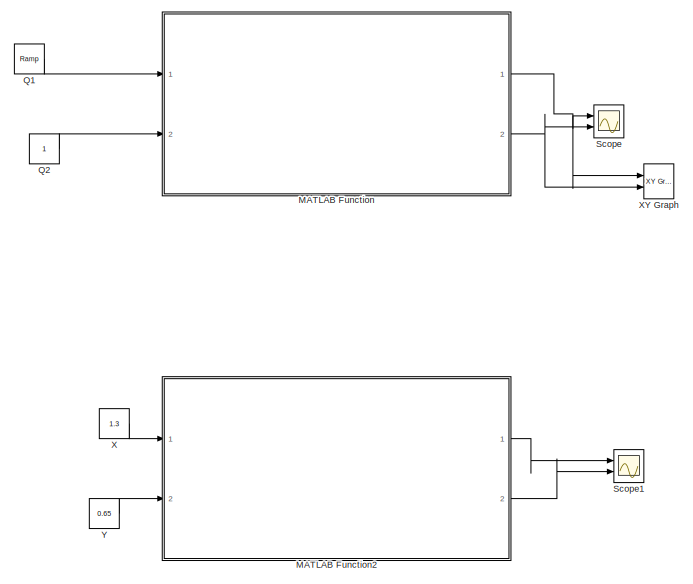
[diagram: root canvas - part 1/3, top left region]
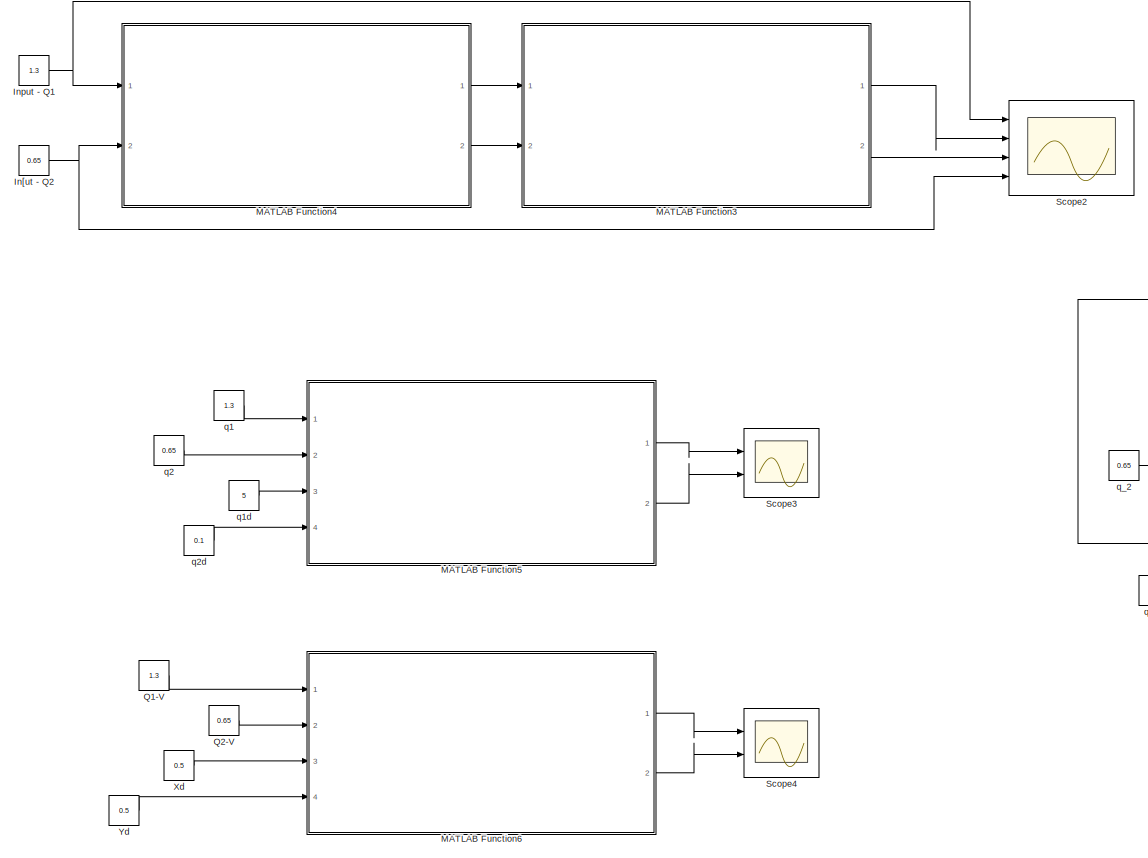
[diagram: root canvas - part 2/3, center side, full height]
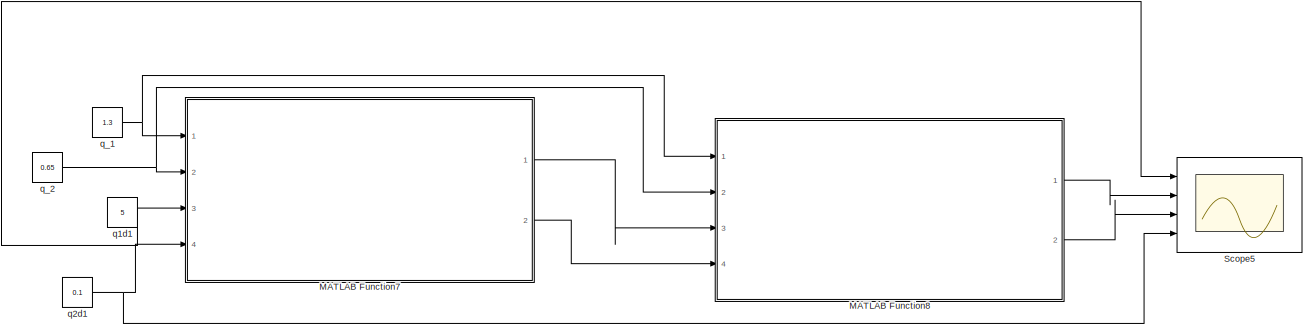
[diagram: root canvas - part 3/3, middle right region]
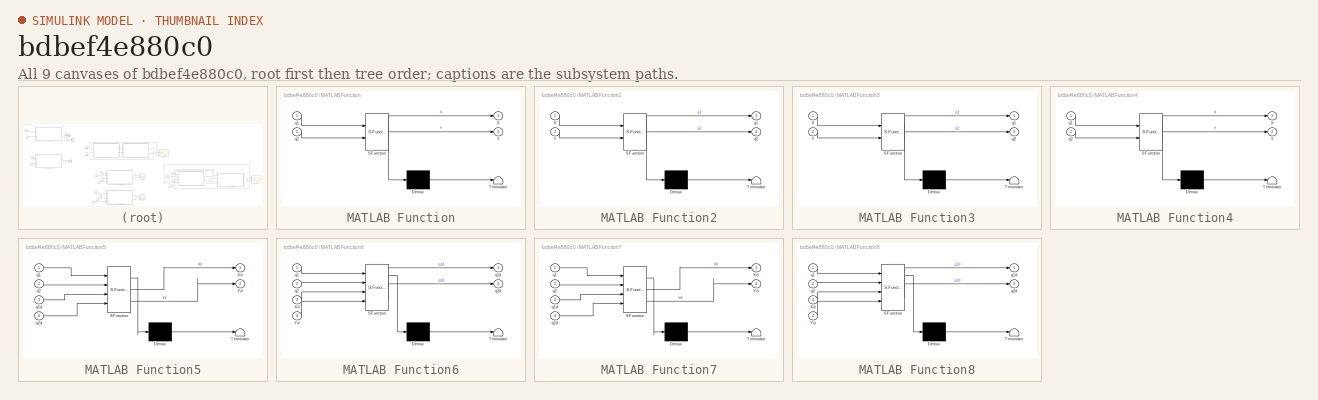
[diagram: thumbnail index - all 9 canvases of the model, root first then tree order]
MODEL slx_bdbef4e880c0
KIND model
CONFIG AbsTol = auto
CONFIG EnableMultiTasking = off
CONFIG FixedStep = auto
CONFIG MaxStep = auto
CONFIG MinStep = auto
CONFIG RelTol = 1e-3
CONFIG SampleTimeConstraint = Unconstrained
CONFIG SolverName = VariableStepAuto
CONFIG StartTime = 0.0
CONFIG StopTime = 3
BLOCK [Constant] In[ut - Q2
  Value = 0.65
BLOCK [Constant] Input - Q1
  Value = 1.3
BLOCK [SubSystem] MATLAB Function
  ErrorFcn = Stateflow.Translate.translate
  PermitHierarchicalResolution = ExplicitOnly
  Ports = [2, 2]
  RequestExecContextInheritance = off
  SFBlockType = MATLAB Function
  TreatAsAtomicUnit = on
BLOCK [Demux] MATLAB Function/ Demux 
  Outputs = 1
  Ports = [1, 1]
BLOCK [S-Function] MATLAB Function/ SFunction 
  EnableBusSupport = on
  FunctionName = sf_sfun
  PortCounts = [2 3]
  Ports = [2, 3]
  SFcnIsStateOwnerBlock = off
  SFunctionDeploymentMode = off
  Tag = Stateflow S-Function 2
BLOCK [Terminator] MATLAB Function/ Terminator 
BLOCK [Outport] MATLAB Function/X
BLOCK [Outport] MATLAB Function/Y
  Port = 2
BLOCK [Inport] MATLAB Function/q1
BLOCK [Inport] MATLAB Function/q2
  Port = 2
BLOCK [SubSystem] MATLAB Function2
  ErrorFcn = Stateflow.Translate.translate
  PermitHierarchicalResolution = ExplicitOnly
  Ports = [2, 2]
  RequestExecContextInheritance = off
  SFBlockType = MATLAB Function
  TreatAsAtomicUnit = on
BLOCK [Demux] MATLAB Function2/ Demux 
  Outputs = 1
  Ports = [1, 1]
BLOCK [S-Function] MATLAB Function2/ SFunction 
  EnableBusSupport = on
  FunctionName = sf_sfun
  PortCounts = [2 3]
  Ports = [2, 3]
  SFcnIsStateOwnerBlock = off
  SFunctionDeploymentMode = off
  Tag = Stateflow S-Function 3
BLOCK [Terminator] MATLAB Function2/ Terminator 
BLOCK [Inport] MATLAB Function2/X
BLOCK [Inport] MATLAB Function2/Y
  Port = 2
BLOCK [Outport] MATLAB Function2/q1
BLOCK [Outport] MATLAB Function2/q2
  Port = 2
BLOCK [SubSystem] MATLAB Function3
  ErrorFcn = Stateflow.Translate.translate
  PermitHierarchicalResolution = ExplicitOnly
  Ports = [2, 2]
  RequestExecContextInheritance = off
  SFBlockType = MATLAB Function
  TreatAsAtomicUnit = on
BLOCK [Demux] MATLAB Function3/ Demux 
  Outputs = 1
  Ports = [1, 1]
BLOCK [S-Function] MATLAB Function3/ SFunction 
  EnableBusSupport = on
  FunctionName = sf_sfun
  PortCounts = [2 3]
  Ports = [2, 3]
  SFcnIsStateOwnerBlock = off
  SFunctionDeploymentMode = off
  Tag = Stateflow S-Function 4
BLOCK [Terminator] MATLAB Function3/ Terminator 
BLOCK [Inport] MATLAB Function3/X
BLOCK [Inport] MATLAB Function3/Y
  Port = 2
BLOCK [Outport] MATLAB Function3/q1
BLOCK [Outport] MATLAB Function3/q2
  Port = 2
BLOCK [SubSystem] MATLAB Function4
  ErrorFcn = Stateflow.Translate.translate
  PermitHierarchicalResolution = ExplicitOnly
  Ports = [2, 2]
  RequestExecContextInheritance = off
  SFBlockType = MATLAB Function
  TreatAsAtomicUnit = on
BLOCK [Demux] MATLAB Function4/ Demux 
  Outputs = 1
  Ports = [1, 1]
BLOCK [S-Function] MATLAB Function4/ SFunction 
  EnableBusSupport = on
  FunctionName = sf_sfun
  PortCounts = [2 3]
  Ports = [2, 3]
  SFcnIsStateOwnerBlock = off
  SFunctionDeploymentMode = off
  Tag = Stateflow S-Function 5
BLOCK [Terminator] MATLAB Function4/ Terminator 
BLOCK [Outport] MATLAB Function4/X
BLOCK [Outport] MATLAB Function4/Y
  Port = 2
BLOCK [Inport] MATLAB Function4/q1
BLOCK [Inport] MATLAB Function4/q2
  Port = 2
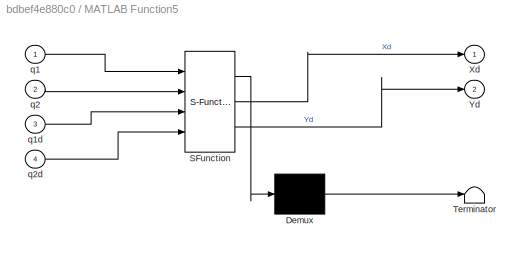
BLOCK [SubSystem] MATLAB Function5
  ErrorFcn = Stateflow.Translate.translate
  PermitHierarchicalResolution = ExplicitOnly
  Ports = [4, 2]
  RequestExecContextInheritance = off
  SFBlockType = MATLAB Function
  TreatAsAtomicUnit = on
BLOCK [Demux] MATLAB Function5/ Demux 
  Outputs = 1
  Ports = [1, 1]
BLOCK [S-Function] MATLAB Function5/ SFunction 
  EnableBusSupport = on
  FunctionName = sf_sfun
  PortCounts = [4 3]
  Ports = [4, 3]
  SFcnIsStateOwnerBlock = off
  SFunctionDeploymentMode = off
  Tag = Stateflow S-Function 6
BLOCK [Terminator] MATLAB Function5/ Terminator 
BLOCK [Outport] MATLAB Function5/Xd
BLOCK [Outport] MATLAB Function5/Yd
  Port = 2
BLOCK [Inport] MATLAB Function5/q1
BLOCK [Inport] MATLAB Function5/q1d
  Port = 3
BLOCK [Inport] MATLAB Function5/q2
  Port = 2
BLOCK [Inport] MATLAB Function5/q2d
  Port = 4
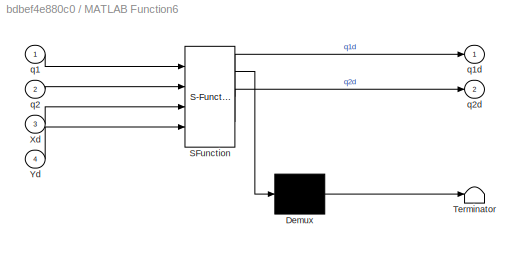
BLOCK [SubSystem] MATLAB Function6
  ErrorFcn = Stateflow.Translate.translate
  PermitHierarchicalResolution = ExplicitOnly
  Ports = [4, 2]
  RequestExecContextInheritance = off
  SFBlockType = MATLAB Function
  TreatAsAtomicUnit = on
BLOCK [Demux] MATLAB Function6/ Demux 
  Outputs = 1
  Ports = [1, 1]
BLOCK [S-Function] MATLAB Function6/ SFunction 
  EnableBusSupport = on
  FunctionName = sf_sfun
  PortCounts = [4 3]
  Ports = [4, 3]
  SFcnIsStateOwnerBlock = off
  SFunctionDeploymentMode = off
  Tag = Stateflow S-Function 7
BLOCK [Terminator] MATLAB Function6/ Terminator 
BLOCK [Inport] MATLAB Function6/Xd
  Port = 3
BLOCK [Inport] MATLAB Function6/Yd
  Port = 4
BLOCK [Inport] MATLAB Function6/q1
BLOCK [Outport] MATLAB Function6/q1d
BLOCK [Inport] MATLAB Function6/q2
  Port = 2
BLOCK [Outport] MATLAB Function6/q2d
  Port = 2
BLOCK [SubSystem] MATLAB Function7
  ErrorFcn = Stateflow.Translate.translate
  PermitHierarchicalResolution = ExplicitOnly
  Ports = [4, 2]
  RequestExecContextInheritance = off
  SFBlockType = MATLAB Function
  TreatAsAtomicUnit = on
BLOCK [Demux] MATLAB Function7/ Demux 
  Outputs = 1
  Ports = [1, 1]
BLOCK [S-Function] MATLAB Function7/ SFunction 
  EnableBusSupport = on
  FunctionName = sf_sfun
  PortCounts = [4 3]
  Ports = [4, 3]
  SFcnIsStateOwnerBlock = off
  SFunctionDeploymentMode = off
  Tag = Stateflow S-Function 8
BLOCK [Terminator] MATLAB Function7/ Terminator 
BLOCK [Outport] MATLAB Function7/Xd
BLOCK [Outport] MATLAB Function7/Yd
  Port = 2
BLOCK [Inport] MATLAB Function7/q1
BLOCK [Inport] MATLAB Function7/q1d
  Port = 3
BLOCK [Inport] MATLAB Function7/q2
  Port = 2
BLOCK [Inport] MATLAB Function7/q2d
  Port = 4
BLOCK [SubSystem] MATLAB Function8
  ErrorFcn = Stateflow.Translate.translate
  PermitHierarchicalResolution = ExplicitOnly
  Ports = [4, 2]
  RequestExecContextInheritance = off
  SFBlockType = MATLAB Function
  TreatAsAtomicUnit = on
BLOCK [Demux] MATLAB Function8/ Demux 
  Outputs = 1
  Ports = [1, 1]
BLOCK [S-Function] MATLAB Function8/ SFunction 
  EnableBusSupport = on
  FunctionName = sf_sfun
  PortCounts = [4 3]
  Ports = [4, 3]
  SFcnIsStateOwnerBlock = off
  SFunctionDeploymentMode = off
  Tag = Stateflow S-Function 9
BLOCK [Terminator] MATLAB Function8/ Terminator 
BLOCK [Inport] MATLAB Function8/Xd
  Port = 3
BLOCK [Inport] MATLAB Function8/Yd
  Port = 4
BLOCK [Inport] MATLAB Function8/q1
BLOCK [Outport] MATLAB Function8/q1d
BLOCK [Inport] MATLAB Function8/q2
  Port = 2
BLOCK [Outport] MATLAB Function8/q2d
  Port = 2
BLOCK [Reference] Q1  REF=simulink/Sources/Ramp
  Ports = [0, 1]
  SourceBlock = simulink/Sources/Ramp
  SourceProductBaseCode = SL
  SourceType = Ramp
BLOCK [Constant] Q1-V
  Value = 1.3
BLOCK [Constant] Q2
BLOCK [Constant] Q2-V
  Value = 0.65
BLOCK [Scope] Scope
  Floating = off
  NumInputPorts = 2
  Ports = [2]
  ScopeSpecificationString = Simulink.scopes.TimeScopeBlockCfg('CurrentConfiguration', extmgr.ConfigurationSet(extmgr.Configuration('Core','General UI',true),extmgr.Configuration('Core','Source UI',true),extmgr.Configuration('Sources','WiredSimulink',true),extmgr.Configuration('Visuals','Time Domain',true,'SerializedDisplays',{struct('MinYLimReal','-0.1875','MaxYLimReal','1.6875','YLabelReal','','MinYLimMag','0.00000','MaxYLi...<+1377ch>
BLOCK [Scope] Scope1
  Floating = off
  NumInputPorts = 2
  Ports = [2]
  ScopeSpecificationString = Simulink.scopes.TimeScopeBlockCfg('CurrentConfiguration', extmgr.ConfigurationSet(extmgr.Configuration('Core','General UI',true),extmgr.Configuration('Core','Source UI',true),extmgr.Configuration('Sources','WiredSimulink',true,'DataLoggingVariableName','ScopeData1'),extmgr.Configuration('Visuals','Time Domain',true,'SerializedDisplays',{struct('MinYLimReal','-2.24801','MaxYLimReal','29.7665','YLab...<+1426ch>
BLOCK [Scope] Scope2
  Floating = off
  NumInputPorts = 4
  Ports = [4]
  ScopeSpecificationString = Simulink.scopes.TimeScopeBlockCfg('CurrentConfiguration', extmgr.ConfigurationSet(extmgr.Configuration('Core','General UI',true),extmgr.Configuration('Core','Source UI',true),extmgr.Configuration('Sources','WiredSimulink',true,'DataLoggingVariableName','ScopeData2'),extmgr.Configuration('Visuals','Time Domain',true,'SerializedDisplays',{struct('MinYLimReal','0.56875','MaxYLimReal','1.38125','YLabe...<+1451ch>
BLOCK [Scope] Scope3
  Floating = off
  NumInputPorts = 2
  Ports = [2]
  ScopeSpecificationString = Simulink.scopes.TimeScopeBlockCfg('CurrentConfiguration', extmgr.ConfigurationSet(extmgr.Configuration('Core','General UI',true),extmgr.Configuration('Core','Source UI',true),extmgr.Configuration('Sources','WiredSimulink',true,'DataLoggingVariableName','ScopeData3'),extmgr.Configuration('Visuals','Time Domain',true,'SerializedDisplays',{struct('MinYLimReal','-0.75314','MaxYLimReal','6.47345','YLab...<+1425ch>
BLOCK [Scope] Scope4
  Floating = off
  NumInputPorts = 2
  Ports = [2]
  ScopeSpecificationString = Simulink.scopes.TimeScopeBlockCfg('CurrentConfiguration', extmgr.ConfigurationSet(extmgr.Configuration('Core','General UI',true),extmgr.Configuration('Core','Source UI',true),extmgr.Configuration('Sources','WiredSimulink',true,'DataLoggingVariableName','ScopeData4'),extmgr.Configuration('Visuals','Time Domain',true,'SerializedDisplays',{struct('MinYLimReal','0.41401','MaxYLimReal','0.52202','YLabe...<+1425ch>
BLOCK [Scope] Scope5
  Floating = off
  NumInputPorts = 4
  Ports = [4]
  ScopeSpecificationString = Simulink.scopes.TimeScopeBlockCfg('CurrentConfiguration', extmgr.ConfigurationSet(extmgr.Configuration('Core','General UI',true),extmgr.Configuration('Core','Source UI',true),extmgr.Configuration('Sources','WiredSimulink',true,'DataLoggingVariableName','ScopeData5'),extmgr.Configuration('Visuals','Time Domain',true,'SerializedDisplays',{struct('MinYLimReal','-0.5125','MaxYLimReal','5.6125','YLabel...<+1463ch>
BLOCK [Constant] X
  Value = 1.3
BLOCK [Reference] XY Graph  REF=simulink/Sinks/XY Graph
  Ports = [2]
  SourceBlock = simulink/Sinks/XY Graph
  SourceProductBaseCode = SL
  SourceType = XY scope.
BLOCK [Constant] Xd
  Value = 0.5
BLOCK [Constant] Y
  Value = 0.65
BLOCK [Constant] Yd
  Value = 0.5
BLOCK [Constant] q1
  Value = 1.3
BLOCK [Constant] q1d
  Value = 5
BLOCK [Constant] q1d1
  Value = 5
BLOCK [Constant] q2
  Value = 0.65
BLOCK [Constant] q2d
  Value = 0.1
BLOCK [Constant] q2d1
  Value = 0.1
BLOCK [Constant] q_1
  Value = 1.3
BLOCK [Constant] q_2
  Value = 0.65
NET In[ut - Q2:1 -> MATLAB Function4:2, Scope2:4
NET Input - Q1:1 -> MATLAB Function4:1, Scope2:1
LINE MATLAB Function2:1 -> Scope1:1
LINE MATLAB Function2:2 -> Scope1:2
LINE MATLAB Function3:1 -> Scope2:2
LINE MATLAB Function3:2 -> Scope2:3
LINE MATLAB Function4:1 -> MATLAB Function3:1
LINE MATLAB Function4:2 -> MATLAB Function3:2
LINE MATLAB Function5:1 -> Scope3:1
LINE MATLAB Function5:2 -> Scope3:2
LINE MATLAB Function6:1 -> Scope4:1
LINE MATLAB Function6:2 -> Scope4:2
LINE MATLAB Function7:1 -> MATLAB Function8:3
LINE MATLAB Function7:2 -> MATLAB Function8:4
LINE MATLAB Function8:1 -> Scope5:2
LINE MATLAB Function8:2 -> Scope5:3
NET MATLAB Function:1 -> Scope:1, XY Graph:1
NET MATLAB Function:2 -> Scope:2, XY Graph:2
LINE Q1-V:1 -> MATLAB Function6:1
LINE Q1:1 -> MATLAB Function:1
LINE Q2-V:1 -> MATLAB Function6:2
LINE Q2:1 -> MATLAB Function:2
LINE X:1 -> MATLAB Function2:1
LINE Xd:1 -> MATLAB Function6:3
LINE Y:1 -> MATLAB Function2:2
LINE Yd:1 -> MATLAB Function6:4
LINE q1:1 -> MATLAB Function5:1
NET q1d1:1 -> MATLAB Function7:3, Scope5:1
LINE q1d:1 -> MATLAB Function5:3
LINE q2:1 -> MATLAB Function5:2
NET q2d1:1 -> MATLAB Function7:4, Scope5:4
LINE q2d:1 -> MATLAB Function5:4
NET q_1:1 -> MATLAB Function7:1, MATLAB Function8:1
NET q_2:1 -> MATLAB Function7:2, MATLAB Function8:2
note: NET lines group one-source signal fan-out (src -> all destinations, sorted); 1:1 wires keep LINE
CHART MATLAB Function states=1 transitions=1
  STATE_LABEL 'eML_blk_kernel()'
  STATE_LABEL 'SCRIPT:\nfunction [X,Y] = RP_POSITION_FW(q1,q2)\nL1 = 0.5;\nX = (L1+q2) * cosd(q1);\nY = (L1+q2) * sind(q1);\nend\n\n'
CHART MATLAB Function2 states=1 transitions=1
  STATE_LABEL 'eML_blk_kernel()'
  STATE_LABEL 'SCRIPT:\nfunction [q1,q2] = RP_POSITION_INV(X,Y)\nL1 = 0.5;\nq1 = atand(Y/X);\nq2 = sqrt(X^2 + Y^2) - L1;\nend\n\n'
CHART MATLAB Function3 states=1 transitions=1
  STATE_LABEL 'eML_blk_kernel()'
  STATE_LABEL 'SCRIPT:\nfunction [q1,q2] = RP_POSITION_INV(X,Y)\nL1 = 0.5;\nq1 = atand(Y/X);\nq2 = sqrt(X^2 + Y^2) - L1;\nend\n\n'
CHART MATLAB Function4 states=1 transitions=1
  STATE_LABEL 'eML_blk_kernel()'
  STATE_LABEL 'SCRIPT:\nfunction [X,Y] = RP_POSITION_FW(q1,q2)\nL1 = 0.5;\nX = (L1+q2) * cosd(q1);\nY = (L1+q2) * sind(q1);\nend\n\n'
CHART MATLAB Function5 states=1 transitions=1
  STATE_LABEL 'eML_blk_kernel()'
  STATE_LABEL 'SCRIPT:\nfunction [Xd,Yd] = RP_VELOCITY_FW(q1,q2,q1d,q2d)\nL1 = 0.5;\nXd = -(L1+q2) * sind(q1)*q1d + cosd(q1)*q2d;\nYd = (L1+q2) * cosd(q1)*q1d + sind(q1)*q2d;\nend\n\n'
CHART MATLAB Function6 states=1 transitions=1
  STATE_LABEL 'eML_blk_kernel()'
  STATE_LABEL 'SCRIPT:\nfunction [q1d,q2d] = RP_VELOCITY_INV(q1,q2,Xd,Yd)\nL1=0.5;\nJ = [-(L1+q2)*sind(q1),cosd(q1);\n      (L1+q2)*cosd(q1),sind(q1)];\n  Joint_Vel = (J\\[Xd;Yd]);\n  q1d = Joint_Vel(1);\n  q2d = Joint_Vel(2);\nend\n\n'
CHART MATLAB Function7 states=1 transitions=1
  STATE_LABEL 'eML_blk_kernel()'
  STATE_LABEL 'SCRIPT:\nfunction [Xd,Yd] = RP_VELOCITY_FW(q1,q2,q1d,q2d)\nL1 = 0.5;\nXd = -(L1+q2) * sind(q1)*q1d + cosd(q1)*q2d;\nYd = (L1+q2) * cosd(q1)*q1d + sind(q1)*q2d;\nend\n\n'
CHART MATLAB Function8 states=1 transitions=1
  STATE_LABEL 'eML_blk_kernel()'
  STATE_LABEL 'SCRIPT:\nfunction [q1d,q2d] = RP_VELOCITY_INV(q1,q2,Xd,Yd)\nL1=0.5;\nJ = [-(L1+q2)*sind(q1),cosd(q1);\n      (L1+q2)*cosd(q1),sind(q1)];\n  Joint_Vel = (J\\[Xd;Yd]);\n  q1d = Joint_Vel(1);\n  q2d = Joint_Vel(2);\nend\n\n'
CHART  states=0 transitions=0
CHART  states=0 transitions=0
CHART  states=0 transitions=0
CHART  states=0 transitions=0
CHART  states=0 transitions=0
CHART  states=0 transitions=0
CHART  states=0 transitions=0
CHART  states=0 transitions=0
